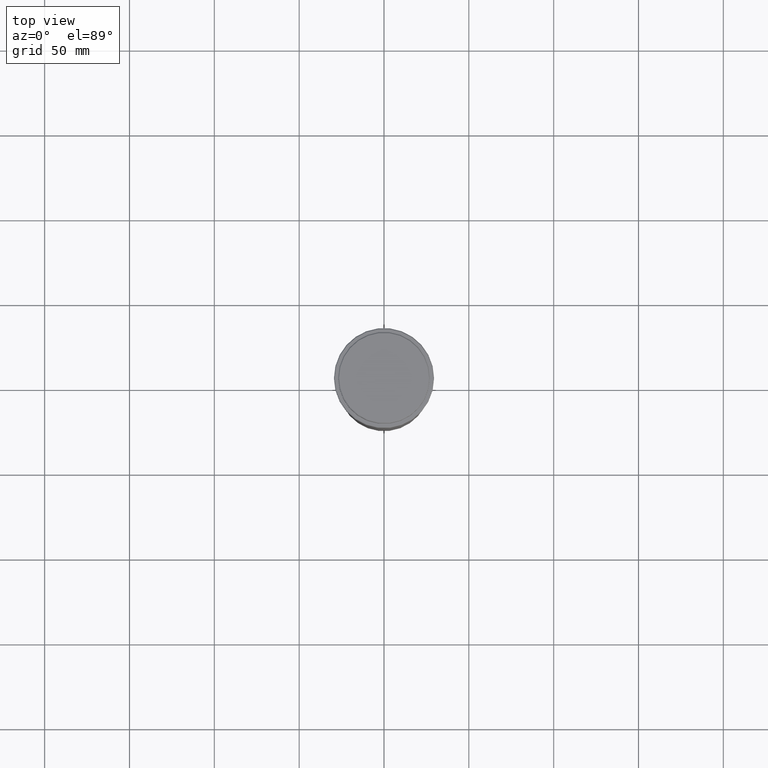
[diagram: clean part render]
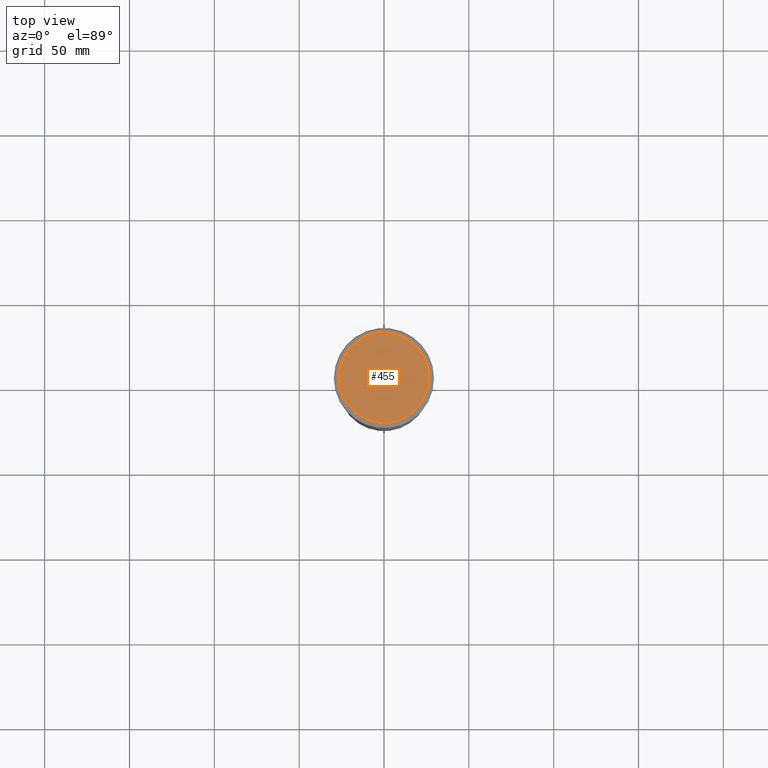
[diagram: same view with one face highlighted and labeled with its STEP entity id]
A machine part, top view. The second image highlights one B-rep face of the part: STEP entity #455.
In plain terms, the highlighted planar face has unit normal (0, -0, 1).
Its self-contained STEP definition (entity closure, byte-faithful):
#42 = CIRCLE ( 'NONE', #840, 26.50000000000002487 ) ;
#79 = DIRECTION ( 'NONE',  ( 1.000000000000000000, 0.000000000000000000, 0.000000000000000000 ) ) ;
#92 = DIRECTION ( 'NONE',  ( 1.000000000000000000, 0.000000000000000000, 0.000000000000000000 ) ) ;
#213 = DIRECTION ( 'NONE',  ( -0.000000000000000000, -0.000000000000000000, 1.000000000000000000 ) ) ;
#216 = DIRECTION ( 'NONE',  ( -0.000000000000000000, -0.000000000000000000, 1.000000000000000000 ) ) ;
#225 = CARTESIAN_POINT ( 'NONE',  ( 0.000000000000000000, 0.000000000000000000, 0.000000000000000000 ) ) ;
#272 = AXIS2_PLACEMENT_3D ( 'NONE', #1174, #1061, #79 ) ;
#399 = ORIENTED_EDGE ( 'NONE', *, *, #1076, .T. ) ;
#455 = ADVANCED_FACE ( 'NONE', ( #830 ), #623, .T. ) ;
#503 = CARTESIAN_POINT ( 'NONE',  ( -26.50000000000002487, 0.000000000000000000, 0.000000000000000000 ) ) ;
#603 = CARTESIAN_POINT ( 'NONE',  ( 26.50000000000002487, 3.275930187719171524E-15, 0.000000000000000000 ) ) ;
#623 = PLANE ( 'NONE',  #272 ) ;
#644 = ORIENTED_EDGE ( 'NONE', *, *, #1405, .T. ) ;
#766 = DIRECTION ( 'NONE',  ( 1.000000000000000000, 0.000000000000000000, 0.000000000000000000 ) ) ;
#830 = FACE_OUTER_BOUND ( 'NONE', #1237, .T. ) ;
#836 = VERTEX_POINT ( 'NONE', #603 ) ;
#840 = AXIS2_PLACEMENT_3D ( 'NONE', #1075, #213, #92 ) ;
#999 = AXIS2_PLACEMENT_3D ( 'NONE', #225, #216, #766 ) ;
#1061 = DIRECTION ( 'NONE',  ( 0.000000000000000000, -0.000000000000000000, 1.000000000000000000 ) ) ;
#1075 = CARTESIAN_POINT ( 'NONE',  ( 0.000000000000000000, 0.000000000000000000, 0.000000000000000000 ) ) ;
#1076 = EDGE_CURVE ( 'NONE', #1244, #836, #1087, .T. ) ;
#1087 = CIRCLE ( 'NONE', #999, 26.50000000000002487 ) ;
#1174 = CARTESIAN_POINT ( 'NONE',  ( 0.000000000000000000, 0.000000000000000000, 0.000000000000000000 ) ) ;
#1237 = EDGE_LOOP ( 'NONE', ( #399, #644 ) ) ;
#1244 = VERTEX_POINT ( 'NONE', #503 ) ;
#1405 = EDGE_CURVE ( 'NONE', #836, #1244, #42, .T. ) ;